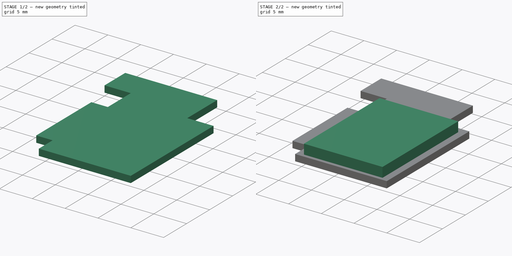
[diagram: build sequence overview — one tinted view per stage of 2, left to right]
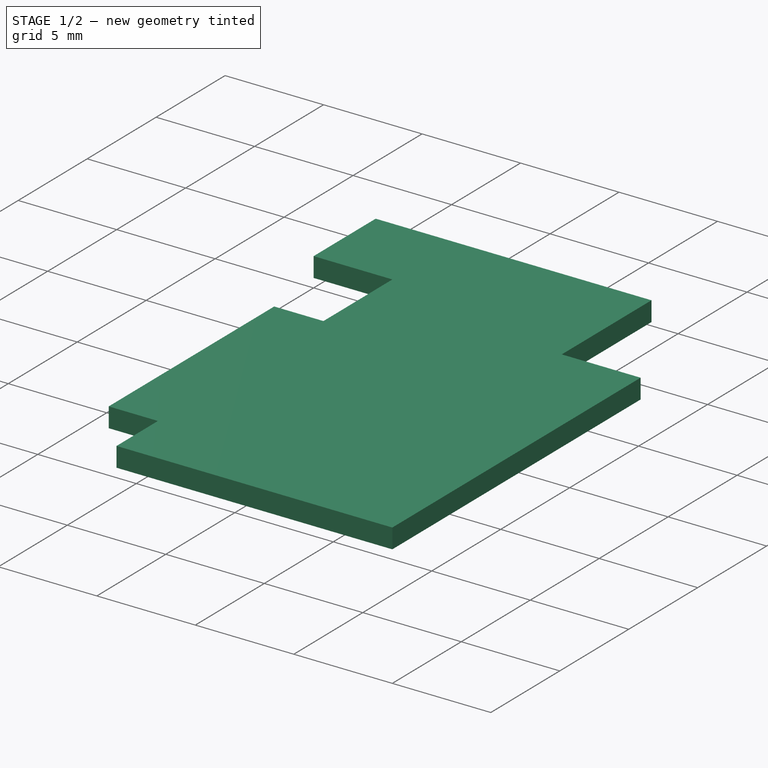
[diagram: stage 1 of 2 — iso view after this stage's code; geometry added in this stage tinted green]
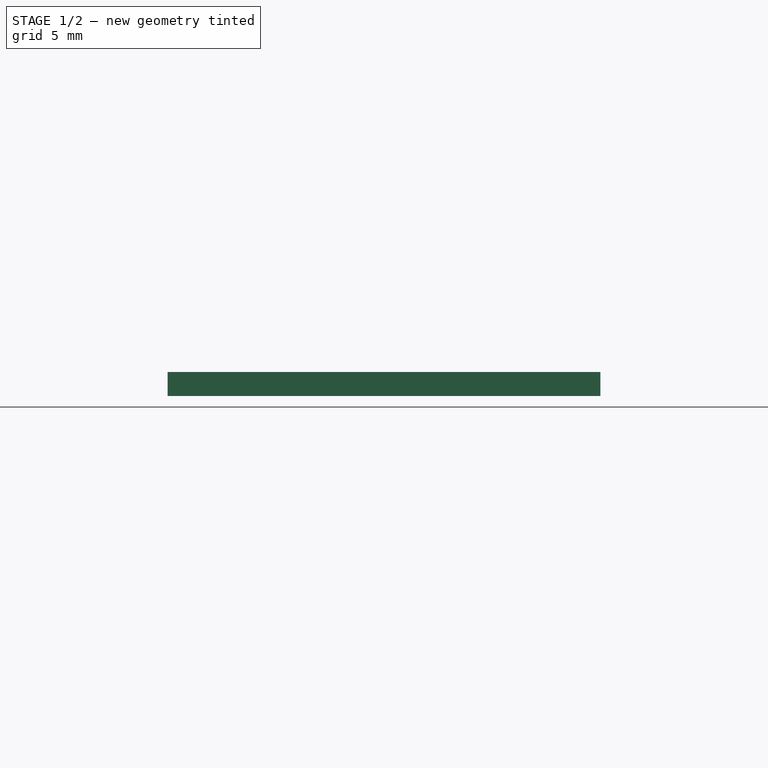
[diagram: stage 1 of 2 — front view after this stage's code; geometry added in this stage tinted green]
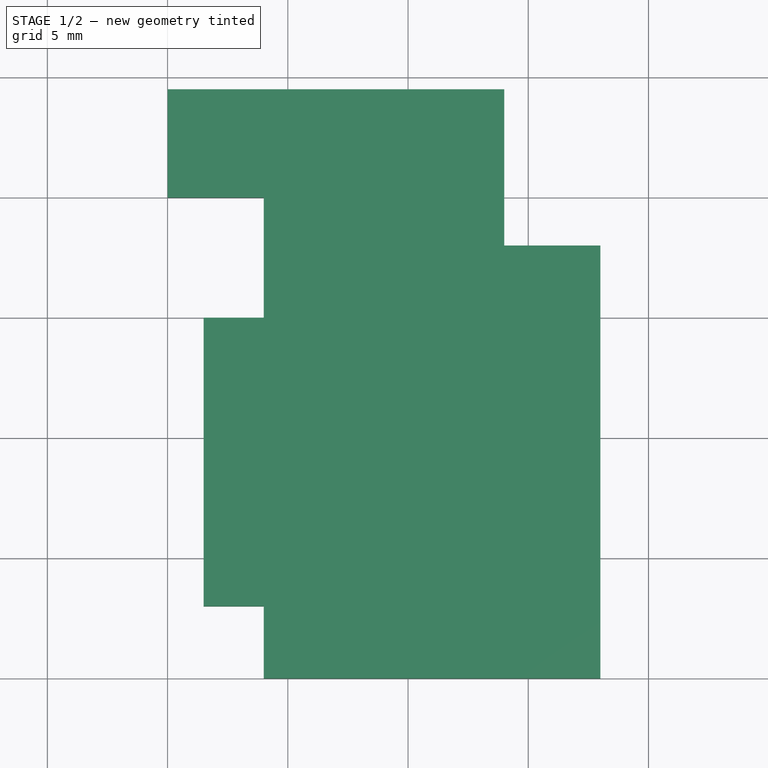
[diagram: stage 1 of 2 — top view after this stage's code; geometry added in this stage tinted green]
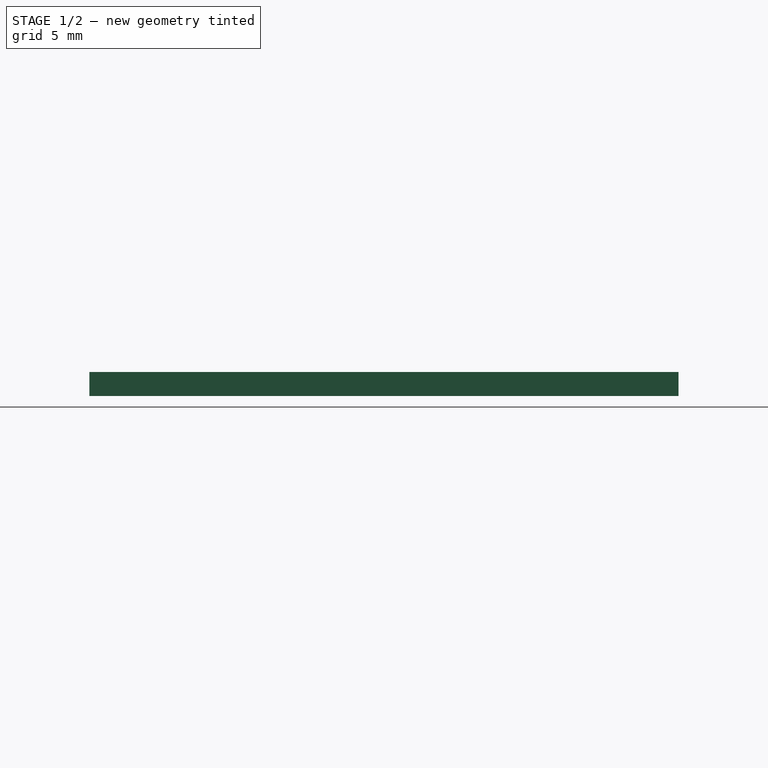
[diagram: stage 1 of 2 — right view after this stage's code; geometry added in this stage tinted green]
FCSTD DOCUMENT  (FreeCAD 0.17R12616 (Git))
Label: tradfri
License: All rights reserved
LicenseURL: http://en.wikipedia.org/wiki/All_rights_reserved
objects: Sketcher::SketchObject×2, PartDesign::Pad×2, PartDesign::Body×1
note: 7 computed .brp shape members not serialized (recipe doc carries the construction recipe); baked Part::Feature solids carry a one-line shape summary decoded from their .brp

FEATURE [Sketcher::SketchObject] Sketch  label="Sketch002"
  MapMode = 5
  sketch-geometry (15):
    g0: LineSegment StartX=0 StartY=24.5 StartZ=0 EndX=14 EndY=24.5 EndZ=0
    g1: LineSegment StartX=14 StartY=24.5 StartZ=0 EndX=14 EndY=18 EndZ=0
    g2: LineSegment StartX=14 StartY=18 StartZ=0 EndX=18 EndY=18 EndZ=0
    g3: LineSegment StartX=18 StartY=18 StartZ=0 EndX=18 EndY=0 EndZ=0
    g4: LineSegment StartX=18 StartY=0 StartZ=0 EndX=4 EndY=0 EndZ=0
    g5: LineSegment StartX=4 StartY=15 StartZ=0 EndX=1.5 EndY=15 EndZ=0
    g6: LineSegment StartX=1.5 StartY=15 StartZ=0 EndX=1.5 EndY=3 EndZ=0
    g7: LineSegment StartX=1.5 StartY=3 StartZ=0 EndX=4 EndY=3 EndZ=0
    g8: LineSegment StartX=4 StartY=20 StartZ=0 EndX=0 EndY=20 EndZ=0
    g9: LineSegment StartX=0 StartY=20 StartZ=0 EndX=0 EndY=24.5 EndZ=0
    g10: LineSegment [constr] StartX=4 StartY=3 StartZ=0 EndX=4 EndY=15 EndZ=0
    g11: LineSegment [constr] StartX=0 StartY=20 StartZ=0 EndX=0 EndY=0 EndZ=0
    g12: LineSegment [constr] StartX=0 StartY=0 StartZ=0 EndX=4 EndY=0 EndZ=0
    g13: LineSegment StartX=4 StartY=20 StartZ=0 EndX=4 EndY=15 EndZ=0
    g14: LineSegment StartX=4 StartY=0 StartZ=0 EndX=4 EndY=3 EndZ=0
  constraints (42):
    c: Horizontal(g0)
    c: Coincident(g1,g0)
    c: Vertical(g1)
    c: Coincident(g2,g1)
    c: Horizontal(g2)
    c: Coincident(g3,g2)
    c: Vertical(g3)
    c: Coincident(g4,g3)
    c: Horizontal(g5)
    c: Vertical(g6)
    c: Coincident(g7,g6)
    c: Horizontal(g7)
    c: Horizontal(g8)
    c: Coincident(g9,g0)
    c: Vertical(g9)
    c: Coincident(g5,g6)
    c: Coincident(g10,g7)
    c: Vertical(g10)
    c: Vertical(g11)
    c: Coincident(g12,g11)
    c: Horizontal(g12)
    c: Coincident(g12,g4)
    c: Coincident(g11,g8)
    c: Coincident(g9,g8)
    c: Coincident(g11,g-1)
    c: Distance(g0,g4) = 24.5
    c: Horizontal(g4)
    c: Distance(g9) = 4.5
    c: Distance(g6) = 12
    c: Distance(g3) = 18
    c: Distance(g4) = 14
    c: Distance(g8,g5) = 5
    c: Distance(g0) = 14
    c: Distance(g5) = 2.5
    c: Coincident(g13,g8)
    c: Coincident(g13,g10)
    c: Vertical(g13)
    c: Coincident(g14,g4)
    c: Coincident(g14,g7)
    c: Vertical(g14)
    c: Distance(g8,g8) = 4
    c: Coincident(g5,g10)
FEATURE [PartDesign::Pad] Pad  label="PCB"
  Length = 1
  Length2 = 100
  Profile = -> Sketch
  Type = 0
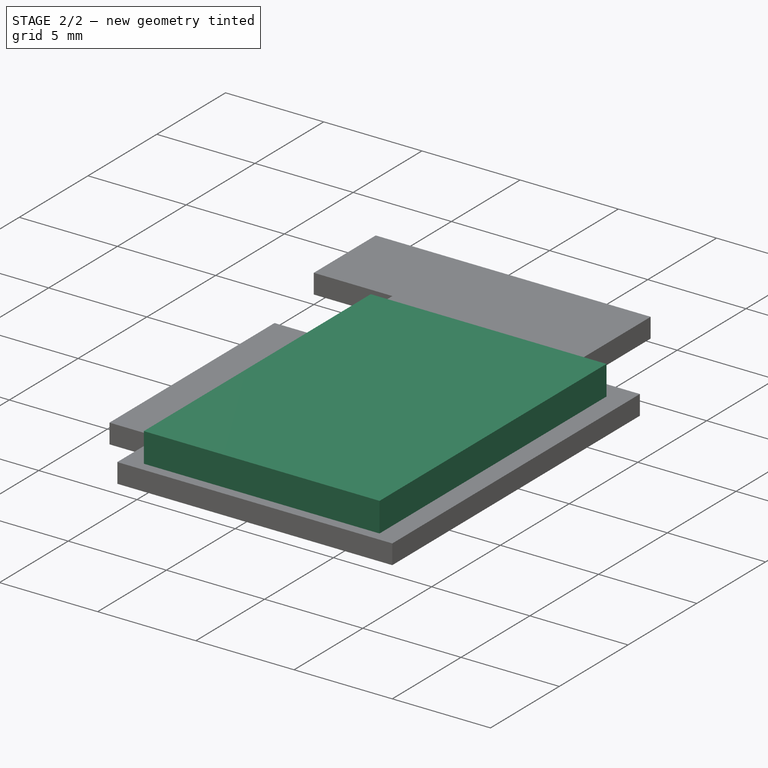
[diagram: stage 2 of 2 — iso view after this stage's code; geometry added in this stage tinted green]
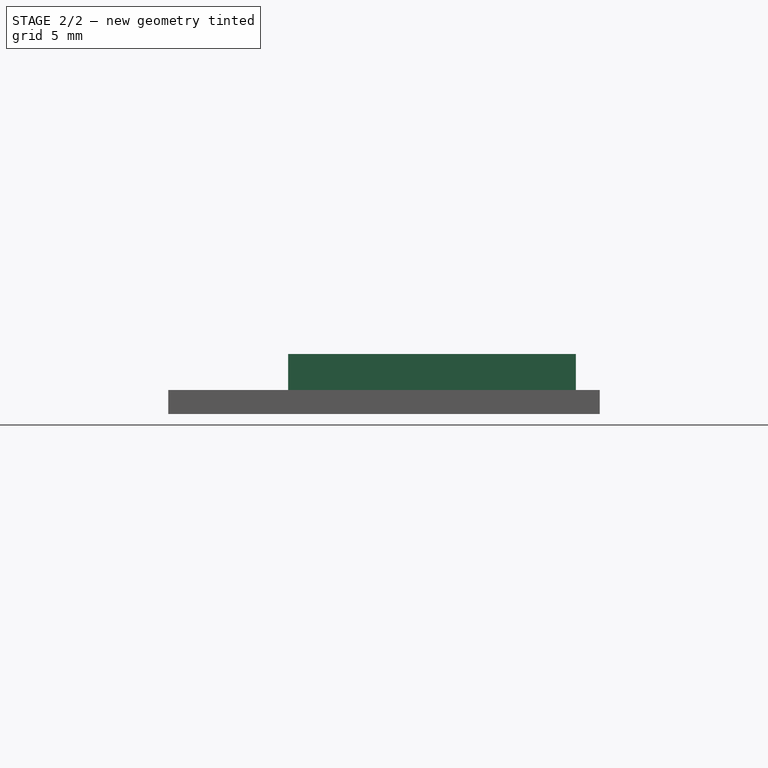
[diagram: stage 2 of 2 — front view after this stage's code; geometry added in this stage tinted green]
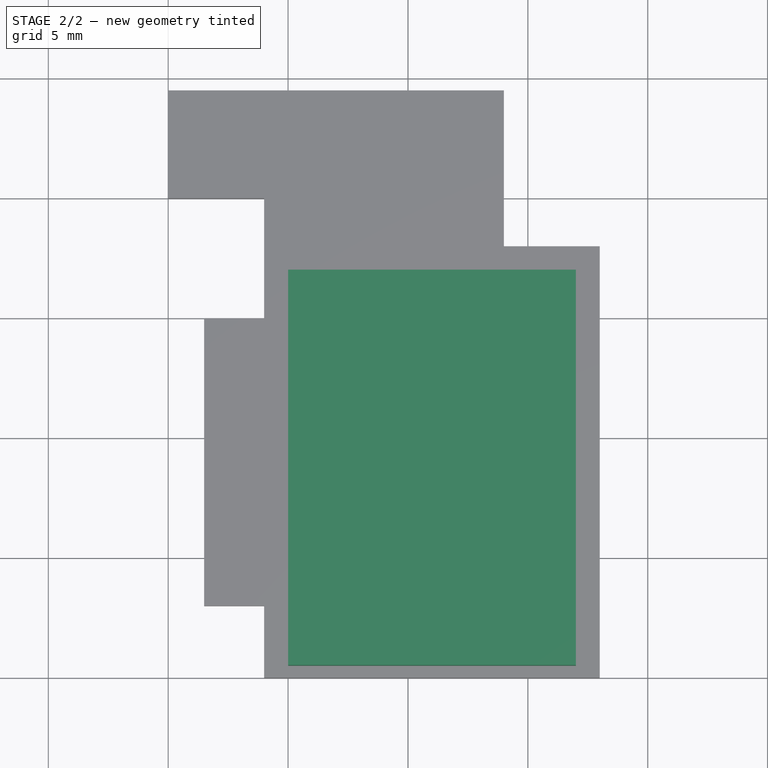
[diagram: stage 2 of 2 — top view after this stage's code; geometry added in this stage tinted green]
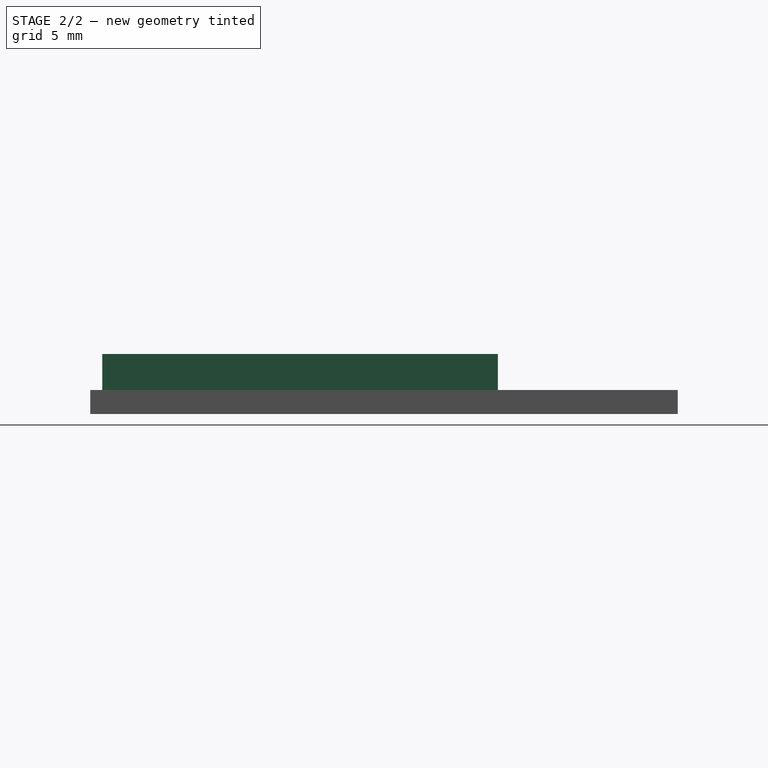
[diagram: stage 2 of 2 — right view after this stage's code; geometry added in this stage tinted green]
FEATURE [Sketcher::SketchObject] Sketch001
  MapMode = 5
  Placement = pos=(0,0,1) rot=(0,0,1;0rad)
  Support = -> [Pad]
  sketch-geometry (4):
    g0: LineSegment StartX=5 StartY=17 StartZ=0 EndX=17 EndY=17 EndZ=0
    g1: LineSegment StartX=17 StartY=17 StartZ=0 EndX=17 EndY=0.5 EndZ=0
    g2: LineSegment StartX=17 StartY=0.5 StartZ=0 EndX=5 EndY=0.5 EndZ=0
    g3: LineSegment StartX=5 StartY=0.5 StartZ=0 EndX=5 EndY=17 EndZ=0
  constraints (12):
    c: Coincident(g0,g1)
    c: Coincident(g1,g2)
    c: Coincident(g2,g3)
    c: Coincident(g3,g0)
    c: Horizontal(g0)
    c: Horizontal(g2)
    c: Vertical(g1)
    c: Vertical(g3)
    c: DistanceX(g-2,g1) = 17
    c: DistanceY(g-1,g0) = 17
    c: Distance(g0) = 12
    c: Distance(g3) = 16.5
FEATURE [PartDesign::Pad] Pad001  label="Shield"
  BaseFeature = -> Pad
  Length = 1.5
  Length2 = 100
  Profile = -> Sketch001
  Type = 0
FEATURE [PartDesign::Body] Body
  Group = -> [Sketch,Pad,Sketch001,Pad001]
  Origin = -> Origin
  Tip = -> Pad001
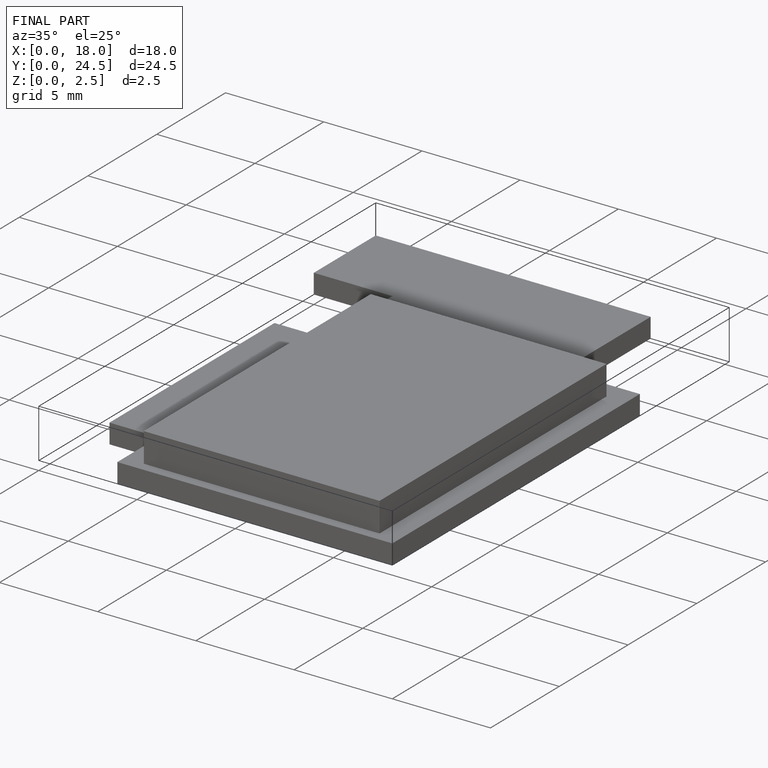
[diagram: finished part — iso view with bounding-box wireframe]
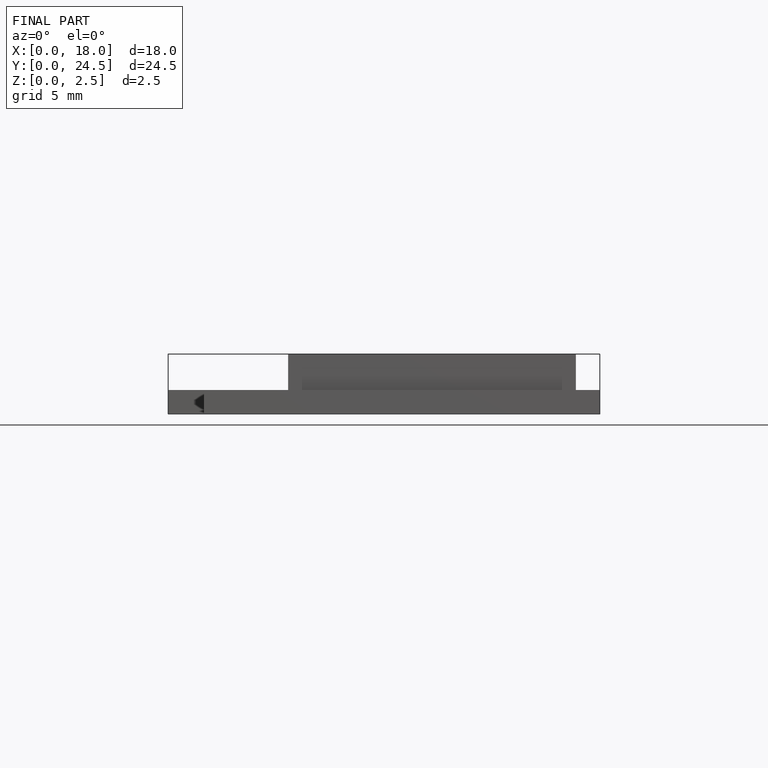
[diagram: finished part — front view with bounding-box wireframe]
